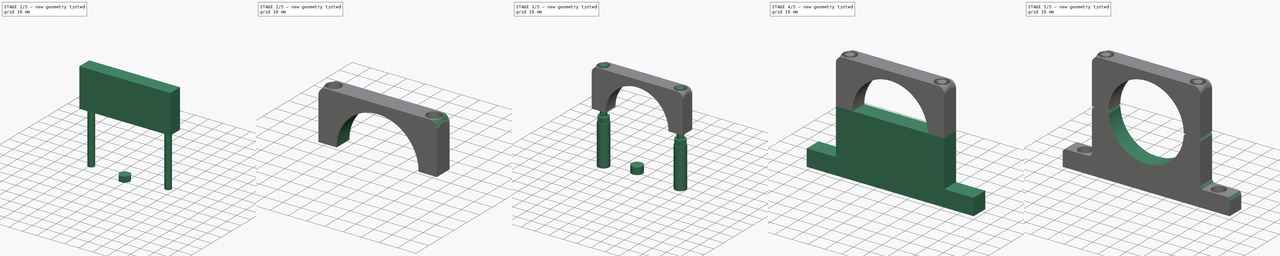
[diagram: build sequence overview — one tinted view per stage of 5, left to right]
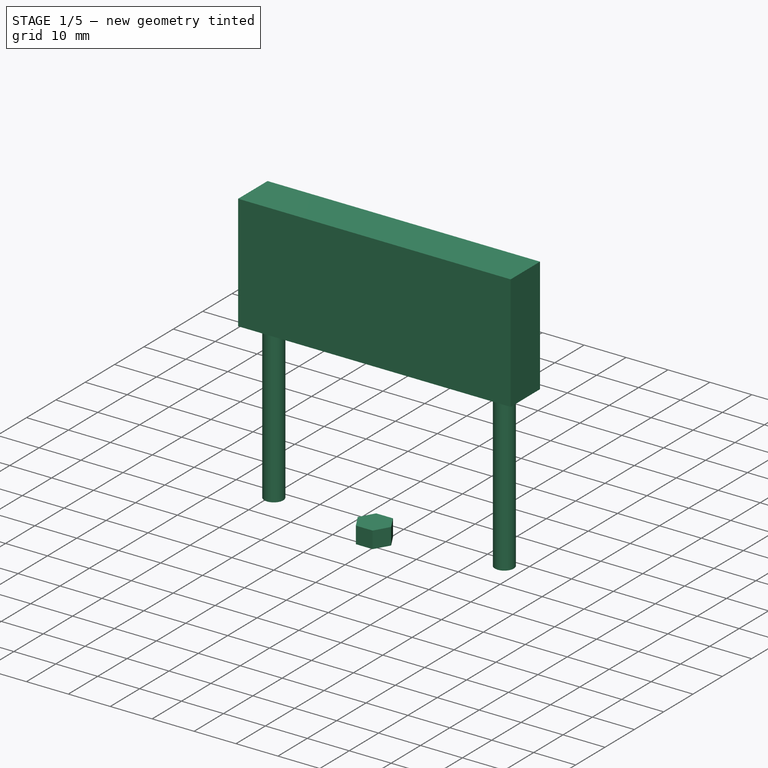
[diagram: stage 1 of 5 — iso view after this stage's code; geometry added in this stage tinted green]
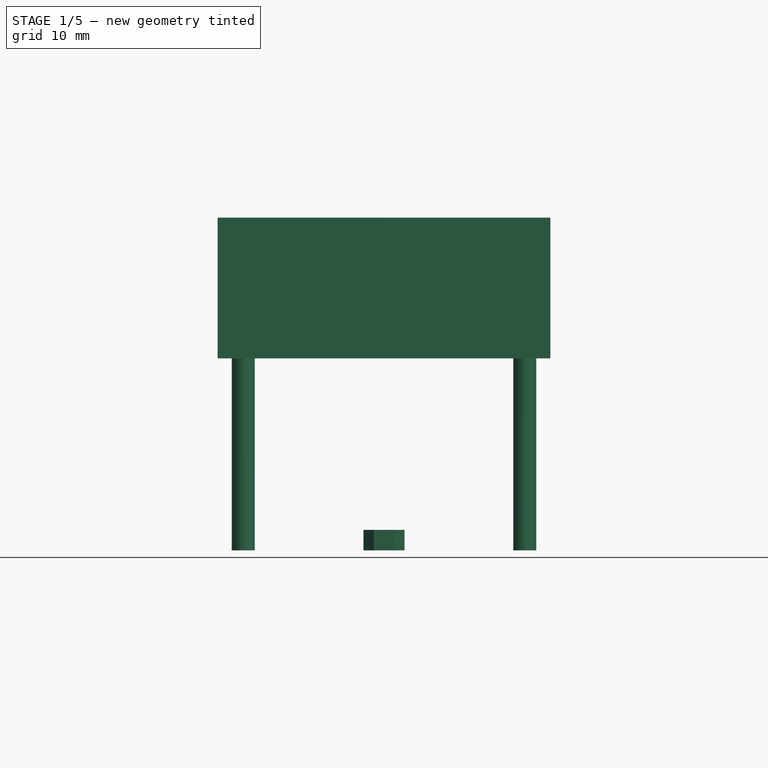
[diagram: stage 1 of 5 — front view after this stage's code; geometry added in this stage tinted green]
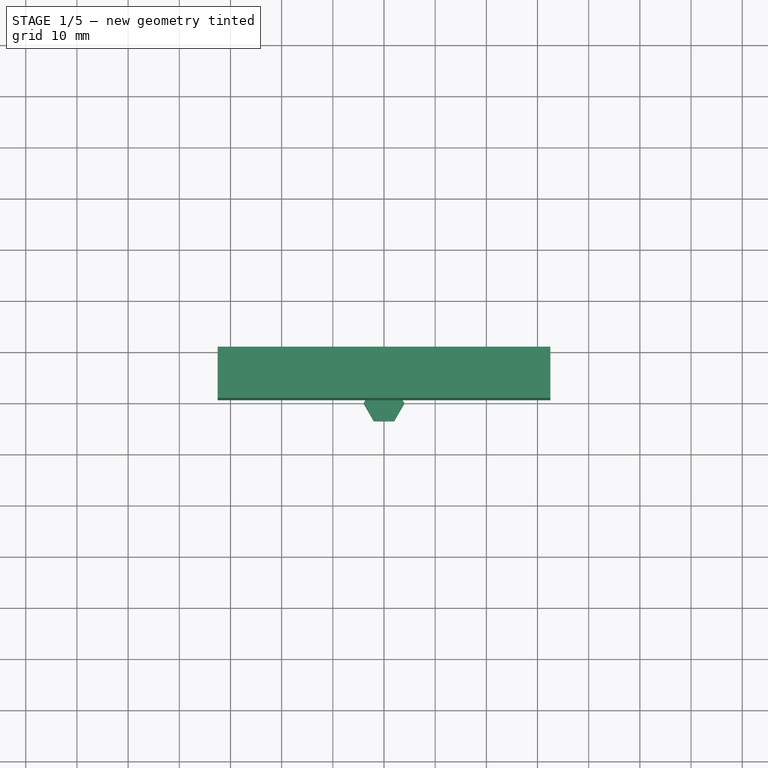
[diagram: stage 1 of 5 — top view after this stage's code; geometry added in this stage tinted green]
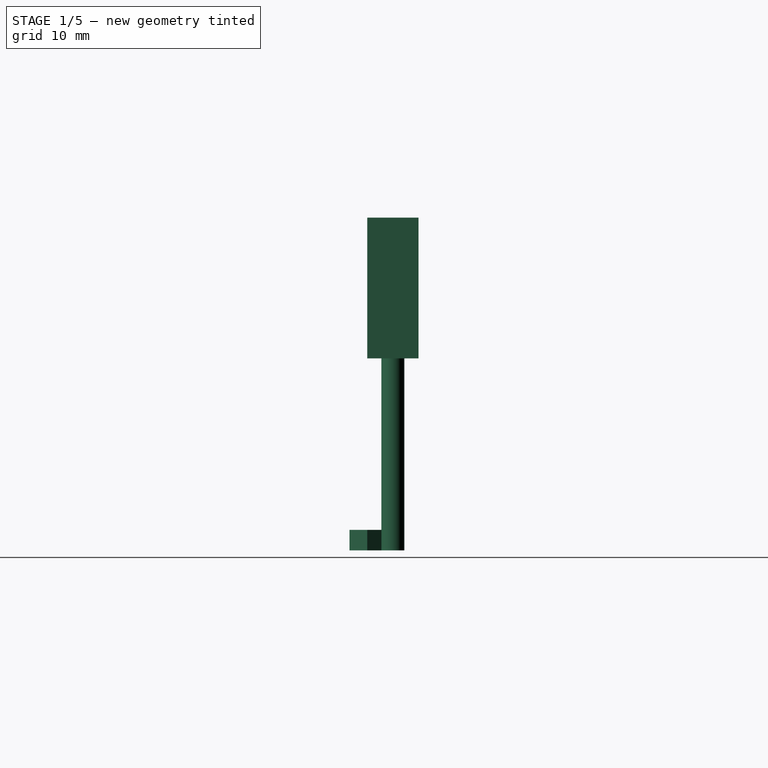
[diagram: stage 1 of 5 — right view after this stage's code; geometry added in this stage tinted green]
FCSTD DOCUMENT  (FreeCAD 1.0R1.0rc2)
Label: Parameterized Clamps M4
License: All rights reserved
LicenseURL: http://en.wikipedia.org/wiki/All_rights_reserved
objects: Part::Cylinder×18, Part::MultiFuse×10, Part::Cut×6, Sketcher::SketchObject×4, PartDesign::Pad×4, PartDesign::Body×4, Part::Box×3, Spreadsheet::Sheet×2, Part::Fillet×2, Part::Feature×2
note: 65 computed .brp shape members not serialized (recipe doc carries the construction recipe); baked Part::Feature solids carry a one-line shape summary decoded from their .brp

FEATURE [Part::Cylinder] Cylinder012
  Angle = 360
  AttacherType = Attacher::AttachEngine3D
  FirstAngle = 0
  Height = 65
  Placement = pos=(27.5,5,0) rot=(0,0,1;0rad)
  Radius = 2.25
  SecondAngle = 0
  expr: .Placement.Base.x = -(-<<ChamberMount>>.chamber_dia / 2 - 5)
  expr: .Placement.Base.y = <<ChamberMount>>.mount_thickness / 2
  expr: Height = <<ChamberMount>>.chamber_dia + <<ChamberMount>>.distance_below + <<ChamberMount>>.base_wallthick
FEATURE [Part::Cylinder] Cylinder013
  Angle = 360
  AttacherType = Attacher::AttachEngine3D
  FirstAngle = 0
  Height = 65
  Placement = pos=(-27.5,5,0) rot=(0,0,1;0rad)
  Radius = 2.25
  SecondAngle = 0
  expr: .Placement.Base.x = -<<ChamberMount>>.chamber_dia / 2 - 5
  expr: .Placement.Base.y = <<ChamberMount>>.mount_thickness / 2
  expr: Height = <<ChamberMount>>.chamber_dia + <<ChamberMount>>.distance_below + <<ChamberMount>>.base_wallthick
FEATURE [Part::MultiFuse] Fusion007
  Shapes = -> [Cylinder012,Cylinder013]
FEATURE [Sketcher::SketchObject] Sketch003
  ArcFitTolerance = 1e-06
  AttachmentSupport = -> [XY_Plane003]
  FullyConstrained = true
  MakeInternals = false
  MapMode = 5
  expr: Constraints[17] = 8 / 2
  sketch-geometry (7):
    g0: LineSegment StartX=4 StartY=0 StartZ=0 EndX=2 EndY=3.4641 EndZ=0
    g1: LineSegment StartX=2 StartY=3.4641 StartZ=0 EndX=-2 EndY=3.4641 EndZ=0
    g2: LineSegment StartX=-2 StartY=3.4641 StartZ=0 EndX=-4 EndY=0 EndZ=0
    g3: LineSegment StartX=-4 StartY=0 StartZ=0 EndX=-2 EndY=-3.4641 EndZ=0
    g4: LineSegment StartX=-2 StartY=-3.4641 StartZ=0 EndX=2 EndY=-3.4641 EndZ=0
    g5: LineSegment StartX=2 StartY=-3.4641 StartZ=0 EndX=4 EndY=0 EndZ=0
    g6: Circle [constr] CenterX=0 CenterY=0 CenterZ=0 NormalX=0 NormalY=0 NormalZ=1 AngleXU=0 Radius=4
  constraints (16):
    c: Coincident(g0,g1)
    c: Coincident(g1,g2)
    c: Coincident(g2,g3)
    c: Coincident(g3,g4)
    c: Coincident(g4,g5)
    c: Coincident(g5,g0)
    c: Equal(g0, g1-g5) x5
    c: PointOnObject(g0,g6)
    c: PointOnObject(g1,g6)
    c: PointOnObject(g2,g6)
    c: PointOnObject(g3,g6)
    c: PointOnObject(g4,g6)
    c: PointOnObject(g5,g6)
    c: Radius(g6) = 4
    c: Coincident(g6,g-1)
    c: PointOnObject(g5,g-1)
FEATURE [PartDesign::Pad] Pad003
  Direction = (0,0,1)
  Length = 4
  Length2 = 10
  Profile = -> Sketch003
  ReferenceAxis = -> Sketch003 [N_Axis]
  Suppressed = false
  Type = 0
FEATURE [PartDesign::Body] Body003  label="M4Press002"
  AllowCompound = false
  Group = -> [Sketch003,Pad003]
  Origin = -> Origin003
  Placement = pos=(-27.5,5,28.5) rot=(1,0,0;0rad)
  Tip = -> Pad003
  expr: .Placement.Base.x = -<<ChamberMount>>.chamber_dia / 2 - 5
  expr: .Placement.Base.y = <<ChamberMount>>.mount_thickness / 2
  expr: .Placement.Base.z = <<ChamberMount>>.distance_below + <<ChamberMount>>.chamber_dia / 2 - 4 - <<ChamberMount>>.base_wallthick
FEATURE [Sketcher::SketchObject] Sketch004
  ArcFitTolerance = 1e-06
  AttachmentSupport = -> [XY_Plane004]
  FullyConstrained = true
  MakeInternals = false
  MapMode = 5
  expr: Constraints[17] = 8 / 2
  sketch-geometry (7):
    g0: LineSegment StartX=4 StartY=0 StartZ=0 EndX=2 EndY=3.4641 EndZ=0
    g1: LineSegment StartX=2 StartY=3.4641 StartZ=0 EndX=-2 EndY=3.4641 EndZ=0
    g2: LineSegment StartX=-2 StartY=3.4641 StartZ=0 EndX=-4 EndY=0 EndZ=0
    g3: LineSegment StartX=-4 StartY=0 StartZ=0 EndX=-2 EndY=-3.4641 EndZ=0
    g4: LineSegment StartX=-2 StartY=-3.4641 StartZ=0 EndX=2 EndY=-3.4641 EndZ=0
    g5: LineSegment StartX=2 StartY=-3.4641 StartZ=0 EndX=4 EndY=0 EndZ=0
    g6: Circle [constr] CenterX=0 CenterY=0 CenterZ=0 NormalX=0 NormalY=0 NormalZ=1 AngleXU=0 Radius=4
  constraints (16):
    c: Coincident(g0,g1)
    c: Coincident(g1,g2)
    c: Coincident(g2,g3)
    c: Coincident(g3,g4)
    c: Coincident(g4,g5)
    c: Coincident(g5,g0)
    c: Equal(g0, g1-g5) x5
    c: PointOnObject(g0,g6)
    c: PointOnObject(g1,g6)
    c: PointOnObject(g2,g6)
    c: PointOnObject(g3,g6)
    c: PointOnObject(g4,g6)
    c: PointOnObject(g5,g6)
    c: Radius(g6) = 4
    c: Coincident(g6,g-1)
    c: PointOnObject(g5,g-1)
FEATURE [PartDesign::Pad] Pad004
  Direction = (0,0,1)
  Length = 4
  Length2 = 10
  Profile = -> Sketch004
  ReferenceAxis = -> Sketch004 [N_Axis]
  Suppressed = false
  Type = 0
FEATURE [Part::Box] Box002  label="Cube002"
  AttacherType = Attacher::AttachEngine3D
  Height = 27.5
  Length = 65
  Placement = pos=(-32.5,0,37.5) rot=(0,0,1;0rad)
  Width = 10
  expr: .Placement.Base.x = -(<<ChamberMount>>.chamber_dia + 20) / 2
  expr: .Placement.Base.z = <<ChamberMount>>.chamber_dia / 2 + <<ChamberMount>>.distance_below
  expr: Height = <<ChamberMount>>.chamber_dia / 2 + <<ChamberMount>>.base_wallthick
  expr: Length = <<ChamberMount>>.chamber_dia + 20
  expr: Width = <<ChamberMount>>.mount_thickness
FEATURE [Part::Cylinder] Cylinder016
  Angle = 360
  AttacherType = Attacher::AttachEngine3D
  FirstAngle = 0
  Height = 22.5
  Placement = pos=(27.5,5,0) rot=(0,0,1;0rad)
  Radius = 4
  SecondAngle = 0
  expr: .Placement.Base.x = -(-<<ChamberMount>>.chamber_dia / 2 - 5)
  expr: .Placement.Base.y = <<ChamberMount>>.mount_thickness / 2
  expr: Height = <<ChamberMount>>.chamber_dia / 2
FEATURE [Part::Cylinder] Cylinder017
  Angle = 360
  AttacherType = Attacher::AttachEngine3D
  FirstAngle = 0
  Height = 22.5
  Placement = pos=(-27.5,5,0) rot=(0,0,1;0rad)
  Radius = 4
  SecondAngle = 0
  expr: .Placement.Base.x = -<<ChamberMount>>.chamber_dia / 2 - 5
  expr: .Placement.Base.y = <<ChamberMount>>.mount_thickness / 2
  expr: Height = <<ChamberMount>>.chamber_dia / 2
FEATURE [Part::MultiFuse] Fusion009
  Placement = pos=(0,0,42.5) rot=(0,0,1;0rad)
  Shapes = -> [Cylinder016,Cylinder017]
  expr: .Placement.Base.z = <<ChamberMount>>.chamber_dia / 2 + <<ChamberMount>>.distance_below + <<ChamberMount>>.base_wallthick
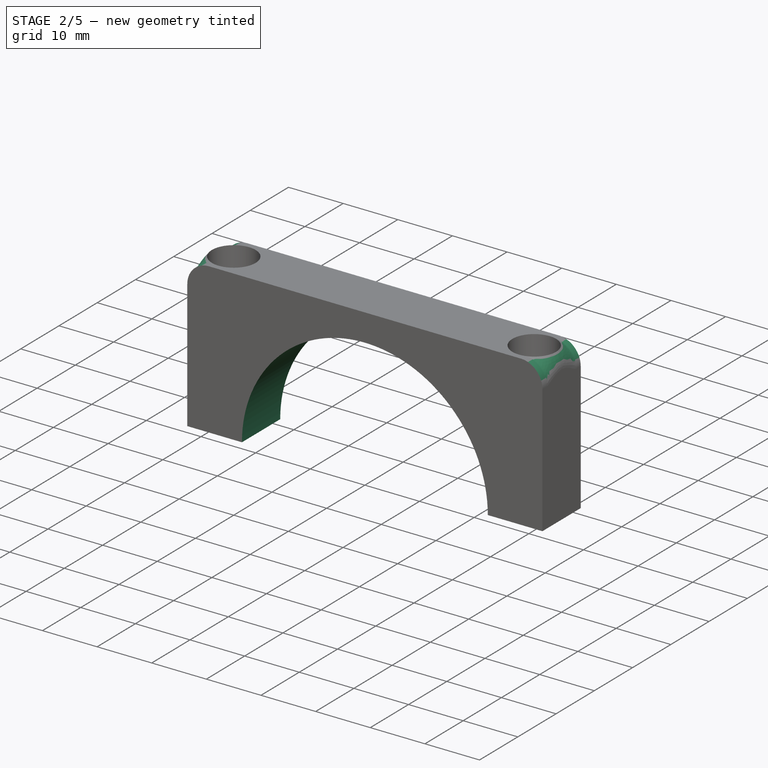
[diagram: stage 2 of 5 — iso view after this stage's code; geometry added in this stage tinted green]
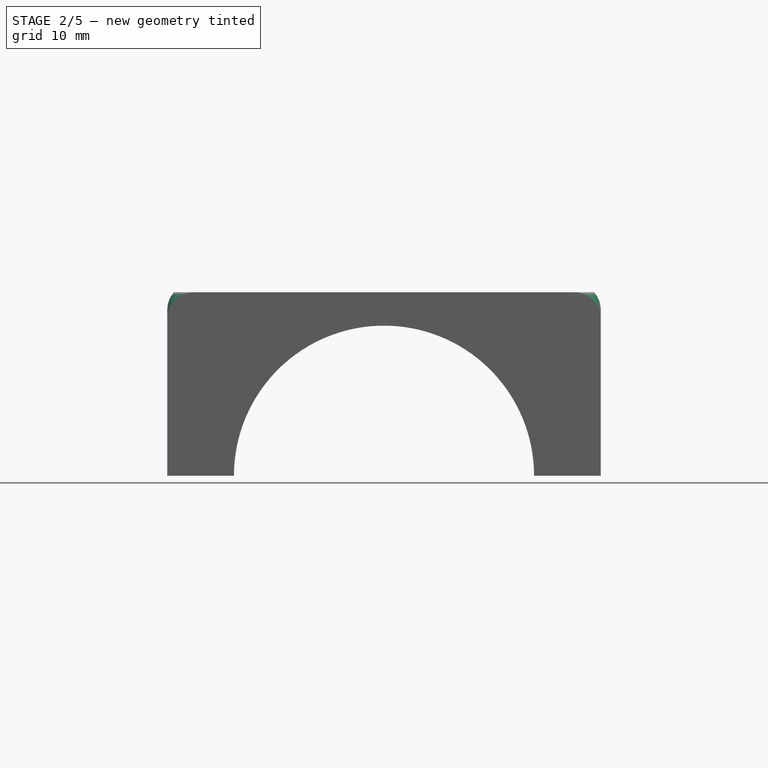
[diagram: stage 2 of 5 — front view after this stage's code; geometry added in this stage tinted green]
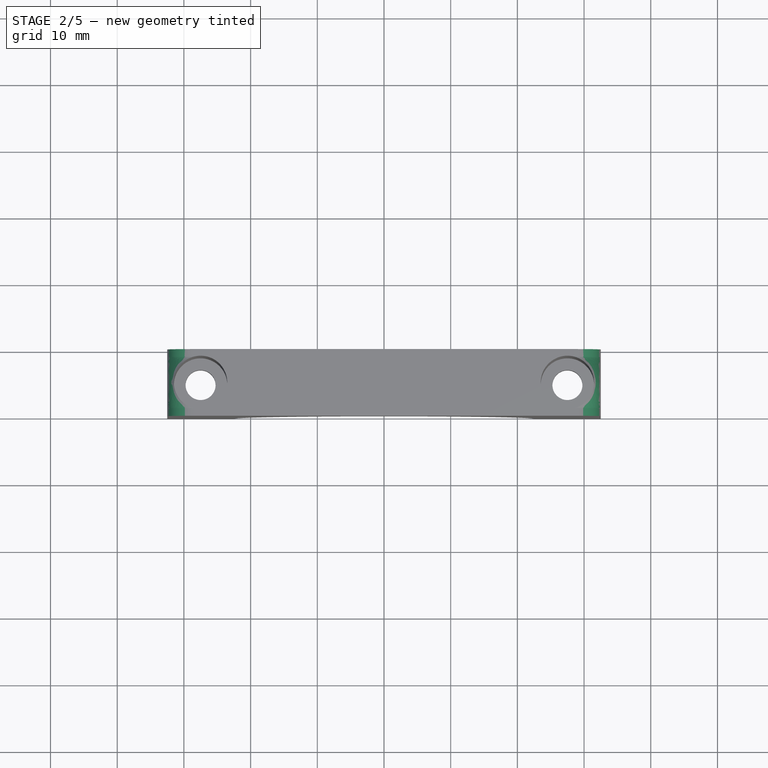
[diagram: stage 2 of 5 — top view after this stage's code; geometry added in this stage tinted green]
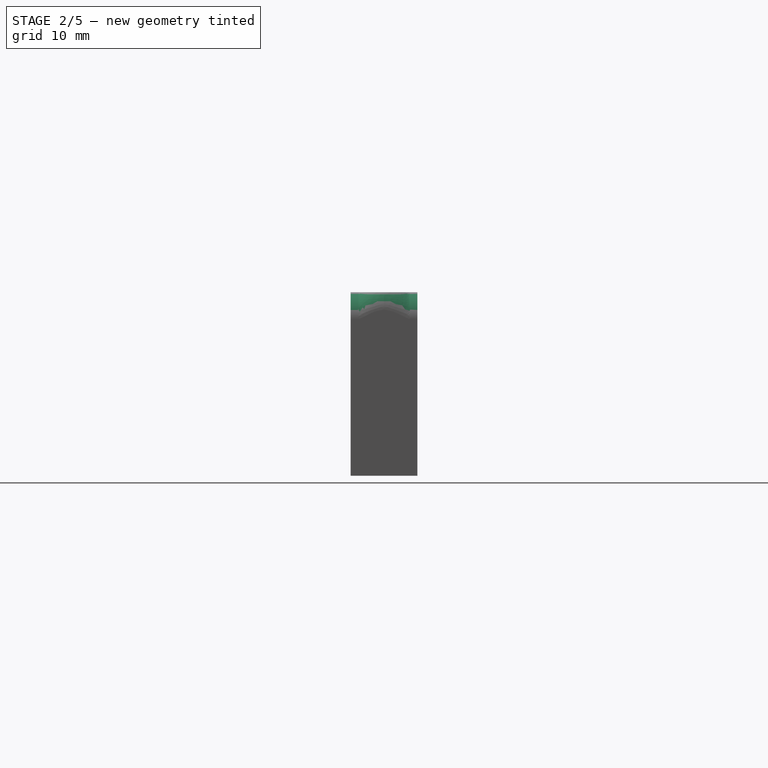
[diagram: stage 2 of 5 — right view after this stage's code; geometry added in this stage tinted green]
FEATURE [Part::Cylinder] Cylinder001
  Angle = 360
  AttacherType = Attacher::AttachEngine3D
  FirstAngle = 0
  Height = 10
  Placement = pos=(0,10,37.5) rot=(0.099504,0,0;1.5708rad)
  Radius = 22.5
  SecondAngle = 0
  expr: .Placement.Base.y = <<ChamberMount>>.mount_thickness
  expr: .Placement.Base.z = <<ChamberMount>>.distance_below + <<ChamberMount>>.chamber_dia / 2
  expr: Height = <<ChamberMount>>.mount_thickness
  expr: Radius = <<ChamberMount>>.chamber_dia / 2
FEATURE [Part::Cylinder] Cylinder014
  Angle = 360
  AttacherType = Attacher::AttachEngine3D
  FirstAngle = 0
  Height = 28.5
  Placement = pos=(27.5,5,0) rot=(0,0,1;0rad)
  Radius = 4
  SecondAngle = 0
  expr: .Placement.Base.x = -(-<<ChamberMount>>.chamber_dia / 2 - 5)
  expr: .Placement.Base.y = <<ChamberMount>>.mount_thickness / 2
  expr: Height = <<ChamberMount>>.distance_below + <<ChamberMount>>.chamber_dia / 2 - 4 - <<ChamberMount>>.base_wallthick
FEATURE [Part::Cylinder] Cylinder015
  Angle = 360
  AttacherType = Attacher::AttachEngine3D
  FirstAngle = 0
  Height = 28.5
  Placement = pos=(-27.5,5,0) rot=(0,0,1;0rad)
  Radius = 4
  SecondAngle = 0
  expr: .Placement.Base.x = -<<ChamberMount>>.chamber_dia / 2 - 5
  expr: .Placement.Base.y = <<ChamberMount>>.mount_thickness / 2
  expr: Height = <<ChamberMount>>.distance_below + <<ChamberMount>>.chamber_dia / 2 - 4 - <<ChamberMount>>.base_wallthick
FEATURE [PartDesign::Body] Body004  label="M4Press003"
  AllowCompound = false
  Group = -> [Sketch004,Pad004]
  Origin = -> Origin004
  Placement = pos=(27.5,5,28.5) rot=(1,0,0;0rad)
  Tip = -> Pad004
  expr: .Placement.Base.x = -(-<<ChamberMount>>.chamber_dia / 2 - 5)
  expr: .Placement.Base.y = <<ChamberMount>>.mount_thickness / 2
  expr: .Placement.Base.z = <<ChamberMount>>.distance_below + <<ChamberMount>>.chamber_dia / 2 - 4 - <<ChamberMount>>.base_wallthick
FEATURE [Part::MultiFuse] Fusion008  label="Connectors001"
  Shapes = -> [Cylinder014,Cylinder015,Fusion007,Body004,Body003]
FEATURE [Part::Cut] Cut003
  Base = -> Box002
  Tool = -> Fusion008
FEATURE [Part::Cut] Cut004
  Base = -> Cut003
  Tool = -> Fusion009
FEATURE [Part::Cut] Cut005
  Base = -> Cut004
  Tool = -> Cylinder001
FEATURE [Part::Fillet] Fillet001  label="Upper Part"
  Base = -> Cut005
  EdgeLinks = -> Cut005 [Edge2,Edge11]
  Edges = 2 edges r=4: [Edge2,Edge11]
FEATURE [Part::Feature] Fillet_solid  label="Lower Part (Solid)"
  shape: bbox 100 x 10 x 37.5 mm, 64 faces (baked)
FEATURE [Part::Feature] Fillet001_solid  label="Upper Part (Solid)"
  shape: bbox 65 x 10 x 27.5 mm, 21 faces (baked)
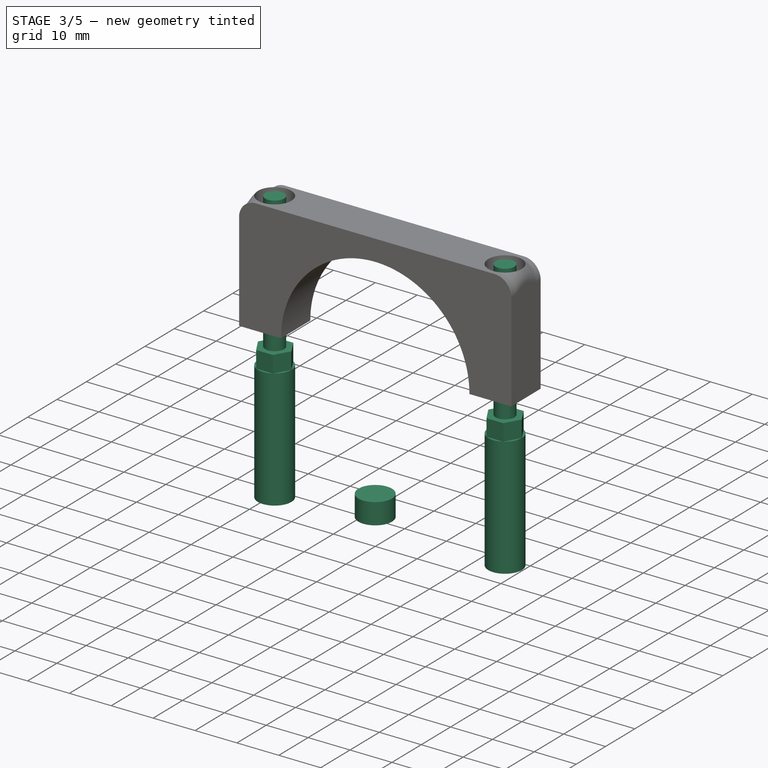
[diagram: stage 3 of 5 — iso view after this stage's code; geometry added in this stage tinted green]
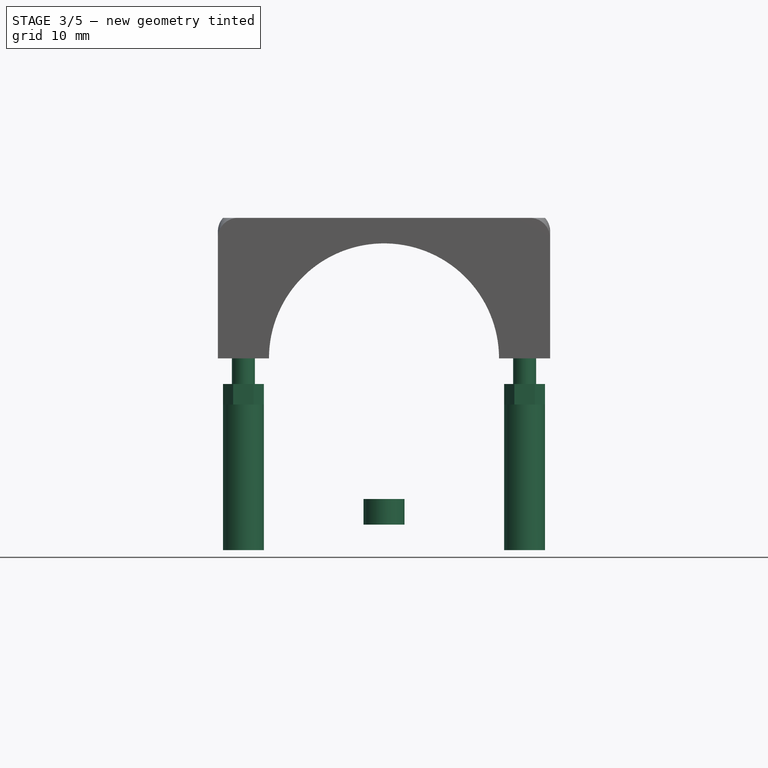
[diagram: stage 3 of 5 — front view after this stage's code; geometry added in this stage tinted green]
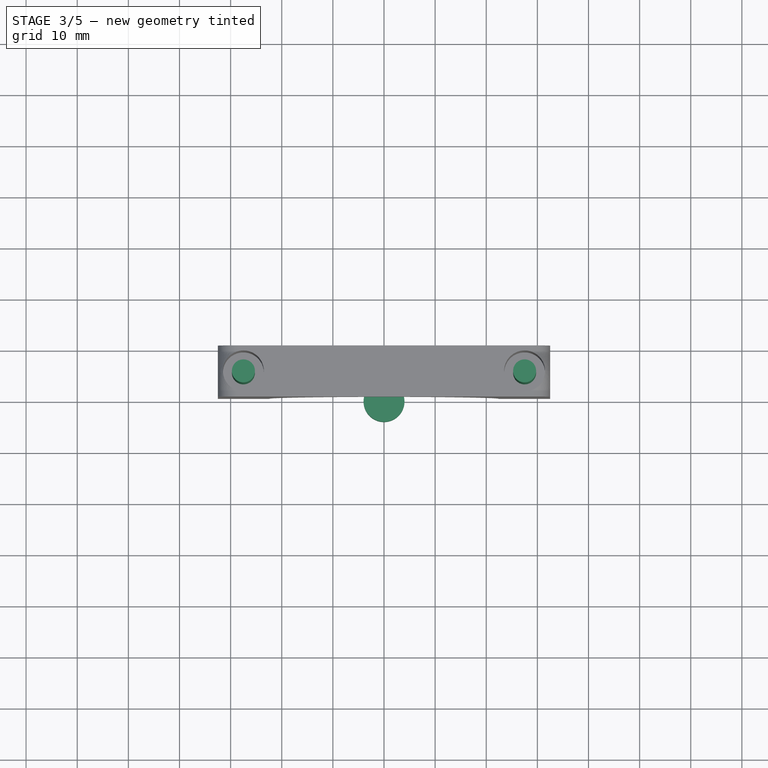
[diagram: stage 3 of 5 — top view after this stage's code; geometry added in this stage tinted green]
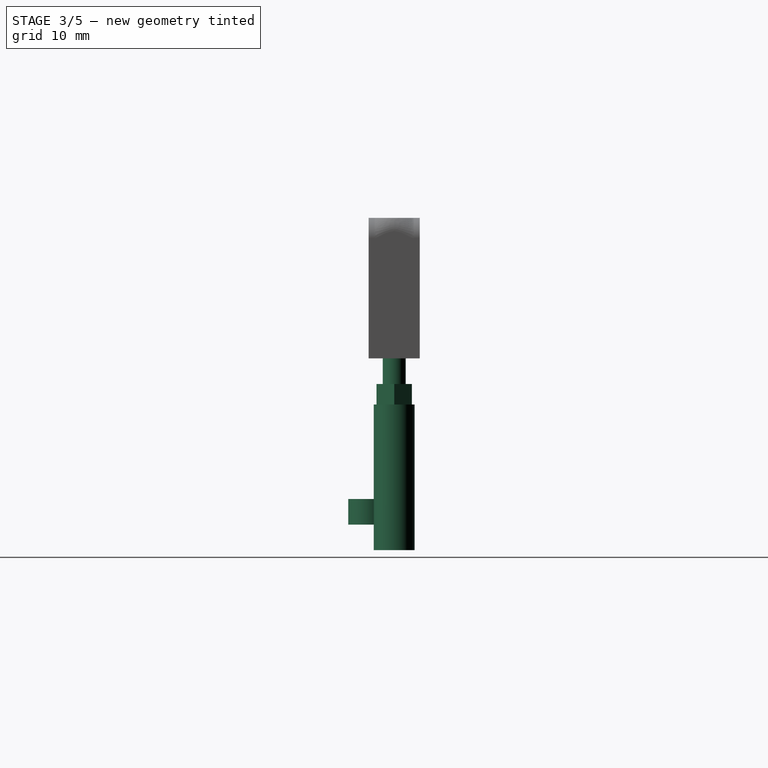
[diagram: stage 3 of 5 — right view after this stage's code; geometry added in this stage tinted green]
FEATURE [Part::Cylinder] Cylinder005
  Angle = 360
  AttacherType = Attacher::AttachEngine3D
  FirstAngle = 0
  Height = 5
  Placement = pos=(0,0,5) rot=(0,0,1;0rad)
  Radius = 4
  SecondAngle = 0
  expr: .Placement.Base.z = <<ChamberMount>>.base_wallthick
  expr: Height = <<ChamberMount>>.base_height - <<ChamberMount>>.base_wallthick
FEATURE [Sketcher::SketchObject] Sketch001
  ArcFitTolerance = 1e-06
  AttachmentSupport = -> [XY_Plane001]
  FullyConstrained = true
  MakeInternals = false
  MapMode = 5
  expr: Constraints[17] = 8 / 2
  sketch-geometry (7):
    g0: LineSegment StartX=4 StartY=0 StartZ=0 EndX=2 EndY=3.4641 EndZ=0
    g1: LineSegment StartX=2 StartY=3.4641 StartZ=0 EndX=-2 EndY=3.4641 EndZ=0
    g2: LineSegment StartX=-2 StartY=3.4641 StartZ=0 EndX=-4 EndY=0 EndZ=0
    g3: LineSegment StartX=-4 StartY=0 StartZ=0 EndX=-2 EndY=-3.4641 EndZ=0
    g4: LineSegment StartX=-2 StartY=-3.4641 StartZ=0 EndX=2 EndY=-3.4641 EndZ=0
    g5: LineSegment StartX=2 StartY=-3.4641 StartZ=0 EndX=4 EndY=0 EndZ=0
    g6: Circle [constr] CenterX=0 CenterY=0 CenterZ=0 NormalX=0 NormalY=0 NormalZ=1 AngleXU=0 Radius=4
  constraints (16):
    c: Coincident(g0,g1)
    c: Coincident(g1,g2)
    c: Coincident(g2,g3)
    c: Coincident(g3,g4)
    c: Coincident(g4,g5)
    c: Coincident(g5,g0)
    c: Equal(g0, g1-g5) x5
    c: PointOnObject(g0,g6)
    c: PointOnObject(g1,g6)
    c: PointOnObject(g2,g6)
    c: PointOnObject(g3,g6)
    c: PointOnObject(g4,g6)
    c: PointOnObject(g5,g6)
    c: Radius(g6) = 4
    c: Coincident(g6,g-1)
    c: PointOnObject(g5,g-1)
FEATURE [PartDesign::Pad] Pad001
  Direction = (0,0,1)
  Length = 4
  Length2 = 10
  Profile = -> Sketch001
  ReferenceAxis = -> Sketch001 [N_Axis]
  Suppressed = false
  Type = 0
FEATURE [PartDesign::Body] Body001  label="M4Press"
  AllowCompound = false
  Group = -> [Sketch001,Pad001]
  Origin = -> Origin001
  Placement = pos=(-27.5,5,28.5) rot=(1,0,0;0rad)
  Tip = -> Pad001
  expr: .Placement.Base.x = -<<ChamberMount>>.chamber_dia / 2 - 5
  expr: .Placement.Base.y = <<ChamberMount>>.mount_thickness / 2
  expr: .Placement.Base.z = <<ChamberMount>>.distance_below + <<ChamberMount>>.chamber_dia / 2 - 4 - <<ChamberMount>>.base_wallthick
FEATURE [Spreadsheet::Sheet] Spreadsheet001  label="SuspensionBracket1"
  cells = A2='Vertical Spacing; B2(vertical_spacing)=70; G2='Horizontal distance Wheel to Flange; H2(horizontalspacing_wf)==tan(idle_angle) * vertical_spacing; A3='Idle angle; B3(idle_angle)=30; G3='Effective thickness; H3(thick_eff)==max(7.5 + min_wall; thickness); A4='Minimum wall width; B4(min_wall)=2; G4='Occupied horizontal space; H4(occupied_horizontal)==vertical_spacing / cos(idle_angle); A5='Thickness; B5(thickness)=5; G5='Length of straight section 1; H5(straight1)==vertical_spacing / cos(idle_angle)
FEATURE [Sketcher::SketchObject] Sketch002
  ArcFitTolerance = 1e-06
  AttachmentSupport = -> [XY_Plane002]
  FullyConstrained = true
  MakeInternals = false
  MapMode = 5
  expr: Constraints[17] = 8 / 2
  sketch-geometry (7):
    g0: LineSegment StartX=4 StartY=0 StartZ=0 EndX=2 EndY=3.4641 EndZ=0
    g1: LineSegment StartX=2 StartY=3.4641 StartZ=0 EndX=-2 EndY=3.4641 EndZ=0
    g2: LineSegment StartX=-2 StartY=3.4641 StartZ=0 EndX=-4 EndY=0 EndZ=0
    g3: LineSegment StartX=-4 StartY=0 StartZ=0 EndX=-2 EndY=-3.4641 EndZ=0
    g4: LineSegment StartX=-2 StartY=-3.4641 StartZ=0 EndX=2 EndY=-3.4641 EndZ=0
    g5: LineSegment StartX=2 StartY=-3.4641 StartZ=0 EndX=4 EndY=0 EndZ=0
    g6: Circle [constr] CenterX=0 CenterY=0 CenterZ=0 NormalX=0 NormalY=0 NormalZ=1 AngleXU=0 Radius=4
  constraints (16):
    c: Coincident(g0,g1)
    c: Coincident(g1,g2)
    c: Coincident(g2,g3)
    c: Coincident(g3,g4)
    c: Coincident(g4,g5)
    c: Coincident(g5,g0)
    c: Equal(g0, g1-g5) x5
    c: PointOnObject(g0,g6)
    c: PointOnObject(g1,g6)
    c: PointOnObject(g2,g6)
    c: PointOnObject(g3,g6)
    c: PointOnObject(g4,g6)
    c: PointOnObject(g5,g6)
    c: Radius(g6) = 4
    c: Coincident(g6,g-1)
    c: PointOnObject(g5,g-1)
FEATURE [PartDesign::Pad] Pad002
  Direction = (0,0,1)
  Length = 4
  Length2 = 10
  Profile = -> Sketch002
  ReferenceAxis = -> Sketch002 [N_Axis]
  Suppressed = false
  Type = 0
FEATURE [PartDesign::Body] Body002  label="M4Press001"
  AllowCompound = false
  Group = -> [Sketch002,Pad002]
  Origin = -> Origin002
  Placement = pos=(27.5,5,28.5) rot=(1,0,0;0rad)
  Tip = -> Pad002
  expr: .Placement.Base.x = -(-<<ChamberMount>>.chamber_dia / 2 - 5)
  expr: .Placement.Base.y = <<ChamberMount>>.mount_thickness / 2
  expr: .Placement.Base.z = <<ChamberMount>>.distance_below + <<ChamberMount>>.chamber_dia / 2 - 4 - <<ChamberMount>>.base_wallthick
FEATURE [Part::Cylinder] Cylinder006
  Angle = 360
  AttacherType = Attacher::AttachEngine3D
  FirstAngle = 0
  Height = 65
  Placement = pos=(27.5,5,0) rot=(0,0,1;0rad)
  Radius = 2.25
  SecondAngle = 0
  expr: .Placement.Base.x = -(-<<ChamberMount>>.chamber_dia / 2 - 5)
  expr: .Placement.Base.y = <<ChamberMount>>.mount_thickness / 2
  expr: Height = <<ChamberMount>>.chamber_dia + <<ChamberMount>>.distance_below + <<ChamberMount>>.base_wallthick
FEATURE [Part::Cylinder] Cylinder007
  Angle = 360
  AttacherType = Attacher::AttachEngine3D
  FirstAngle = 0
  Height = 65
  Placement = pos=(-27.5,5,0) rot=(0,0,1;0rad)
  Radius = 2.25
  SecondAngle = 0
  expr: .Placement.Base.x = -<<ChamberMount>>.chamber_dia / 2 - 5
  expr: .Placement.Base.y = <<ChamberMount>>.mount_thickness / 2
  expr: Height = <<ChamberMount>>.chamber_dia + <<ChamberMount>>.distance_below + <<ChamberMount>>.base_wallthick
FEATURE [Part::MultiFuse] Fusion004
  Shapes = -> [Cylinder006,Cylinder007]
FEATURE [Part::Cylinder] Cylinder010
  Angle = 360
  AttacherType = Attacher::AttachEngine3D
  FirstAngle = 0
  Height = 28.5
  Placement = pos=(27.5,5,0) rot=(0,0,1;0rad)
  Radius = 4
  SecondAngle = 0
  expr: .Placement.Base.x = -(-<<ChamberMount>>.chamber_dia / 2 - 5)
  expr: .Placement.Base.y = <<ChamberMount>>.mount_thickness / 2
  expr: Height = <<ChamberMount>>.distance_below + <<ChamberMount>>.chamber_dia / 2 - 4 - <<ChamberMount>>.base_wallthick
FEATURE [Part::Cylinder] Cylinder011
  Angle = 360
  AttacherType = Attacher::AttachEngine3D
  FirstAngle = 0
  Height = 28.5
  Placement = pos=(-27.5,5,0) rot=(0,0,1;0rad)
  Radius = 4
  SecondAngle = 0
  expr: .Placement.Base.x = -<<ChamberMount>>.chamber_dia / 2 - 5
  expr: .Placement.Base.y = <<ChamberMount>>.mount_thickness / 2
  expr: Height = <<ChamberMount>>.distance_below + <<ChamberMount>>.chamber_dia / 2 - 4 - <<ChamberMount>>.base_wallthick
FEATURE [Part::MultiFuse] Fusion006  label="Connectors"
  Shapes = -> [Cylinder010,Cylinder011,Fusion004,Body002,Body001]
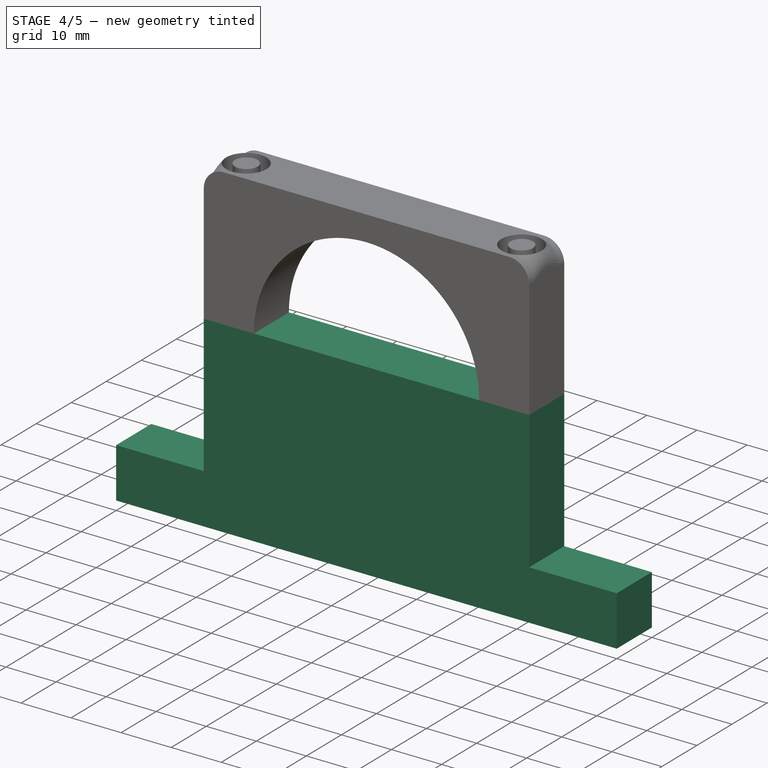
[diagram: stage 4 of 5 — iso view after this stage's code; geometry added in this stage tinted green]
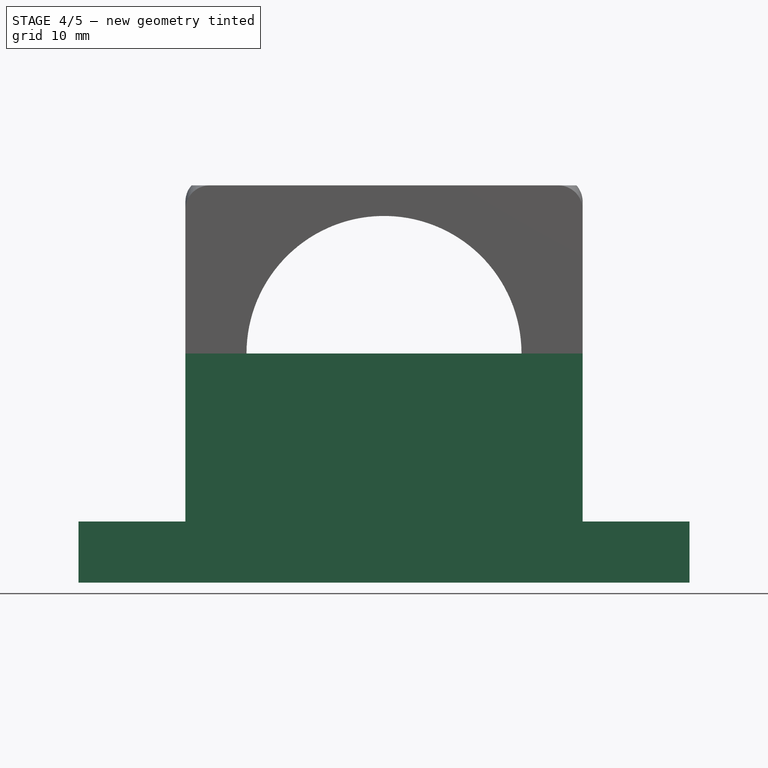
[diagram: stage 4 of 5 — front view after this stage's code; geometry added in this stage tinted green]
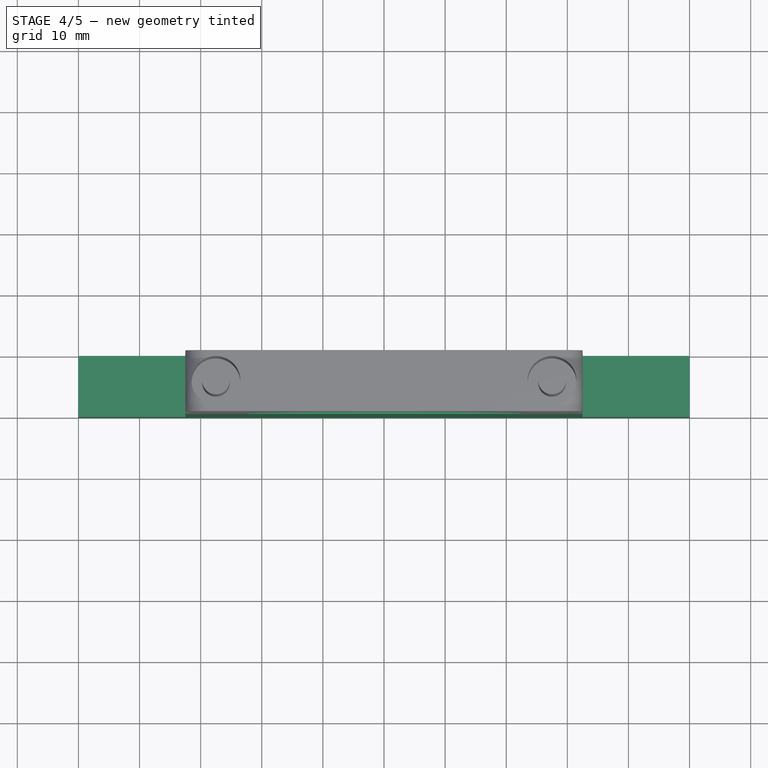
[diagram: stage 4 of 5 — top view after this stage's code; geometry added in this stage tinted green]
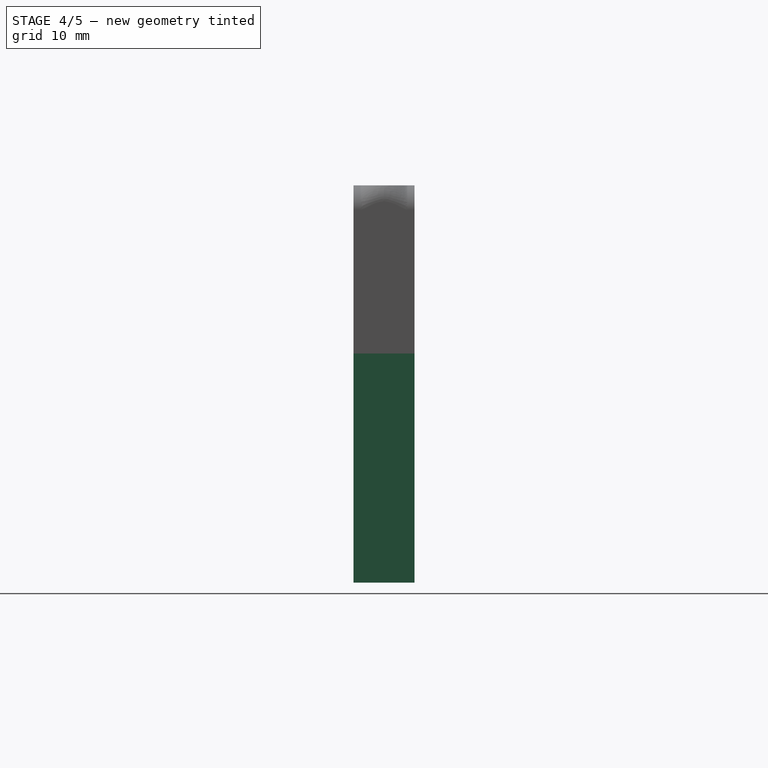
[diagram: stage 4 of 5 — right view after this stage's code; geometry added in this stage tinted green]
FEATURE [Spreadsheet::Sheet] Spreadsheet  label="ChamberMount"
  cells = A1='Mount properties; A2='Chamber diameter; B2(chamber_dia)=45; A3='Distance below chamber; B3(distance_below)=15; A4='Thickness of mount; B4(mount_thickness)=10; A6='Mount width; B6(base_width)=100; A7='Mounthole spacing; B7(base_hole_spacing)=80; A8='Base height; B8(base_height)=10; A9='Wall thickness; B9(base_wallthick)=5
FEATURE [Part::Box] Box  label="Cube"
  AttacherType = Attacher::AttachEngine3D
  Height = 10
  Length = 100
  Placement = pos=(-50,0,0) rot=(0,0,1;0rad)
  Width = 10
  expr: .Placement.Base.x = -<<ChamberMount>>.base_width / 2
  expr: Height = <<ChamberMount>>.base_height
  expr: Length = <<ChamberMount>>.base_width
  expr: Width = <<ChamberMount>>.mount_thickness
FEATURE [Part::Box] Box001  label="Cube001"
  AttacherType = Attacher::AttachEngine3D
  Height = 37.5
  Length = 65
  Placement = pos=(-32.5,0,0) rot=(0,0,1;0rad)
  Width = 10
  expr: .Placement.Base.x = -<<ChamberMount>>.chamber_dia / 2 - 10
  expr: Height = <<ChamberMount>>.distance_below + <<ChamberMount>>.chamber_dia / 2
  expr: Length = <<ChamberMount>>.chamber_dia + 2 * 10
  expr: Width = <<ChamberMount>>.mount_thickness
FEATURE [Part::Cylinder] Cylinder002
  Angle = 360
  AttacherType = Attacher::AttachEngine3D
  FirstAngle = 0
  Height = 10
  Radius = 2.25
  SecondAngle = 0
  expr: Height = <<ChamberMount>>.base_height
FEATURE [Part::Cylinder] Cylinder003
  Angle = 360
  AttacherType = Attacher::AttachEngine3D
  FirstAngle = 0
  Height = 5
  Placement = pos=(0,0,5) rot=(0,0,1;0rad)
  Radius = 4
  SecondAngle = 0
  expr: .Placement.Base.z = <<ChamberMount>>.base_wallthick
  expr: Height = <<ChamberMount>>.base_height - <<ChamberMount>>.base_wallthick
FEATURE [Part::MultiFuse] Fusion001
  Placement = pos=(40,5,0) rot=(0,0,1;0rad)
  Shapes = -> [Cylinder003,Cylinder002]
  expr: .Placement.Base.x = <<ChamberMount>>.base_hole_spacing / 2
  expr: .Placement.Base.y = <<ChamberMount>>.mount_thickness / 2
FEATURE [Part::Cylinder] Cylinder004
  Angle = 360
  AttacherType = Attacher::AttachEngine3D
  FirstAngle = 0
  Height = 10
  Radius = 2.25
  SecondAngle = 0
  expr: Height = <<ChamberMount>>.base_height
FEATURE [Part::MultiFuse] Fusion002
  Placement = pos=(-40,5,0) rot=(0,0,1;0rad)
  Shapes = -> [Cylinder005,Cylinder004]
  expr: .Placement.Base.x = -<<ChamberMount>>.base_hole_spacing / 2
  expr: .Placement.Base.y = <<ChamberMount>>.mount_thickness / 2
FEATURE [Part::MultiFuse] Fusion003
  Shapes = -> [Fusion001,Fusion002]
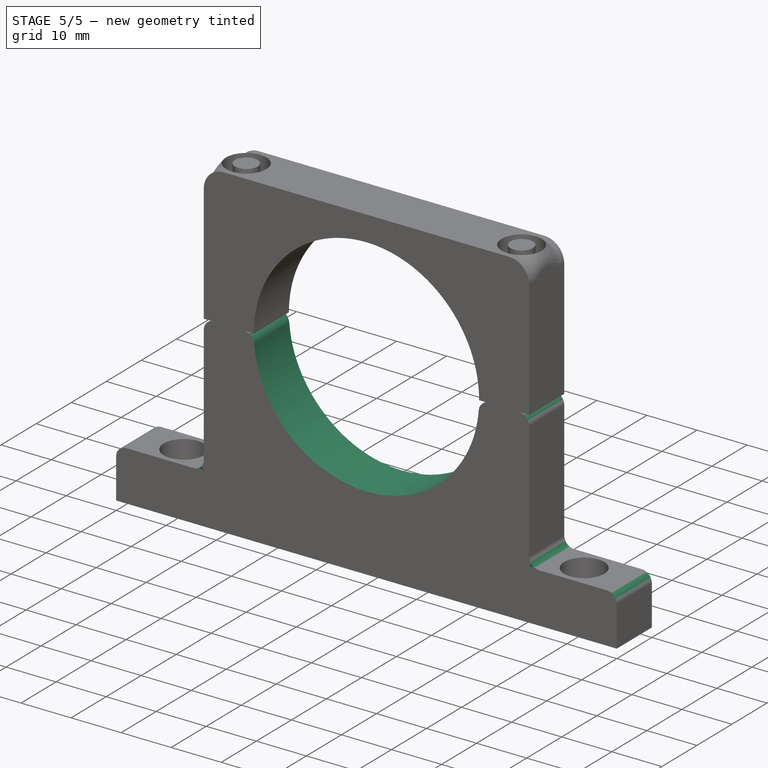
[diagram: stage 5 of 5 — iso view after this stage's code; geometry added in this stage tinted green]
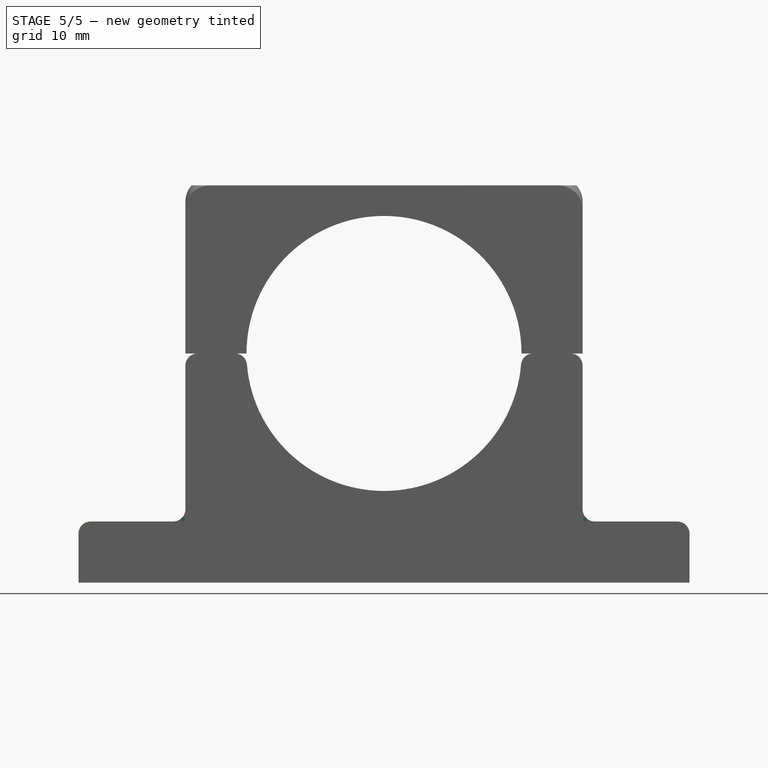
[diagram: stage 5 of 5 — front view after this stage's code; geometry added in this stage tinted green]
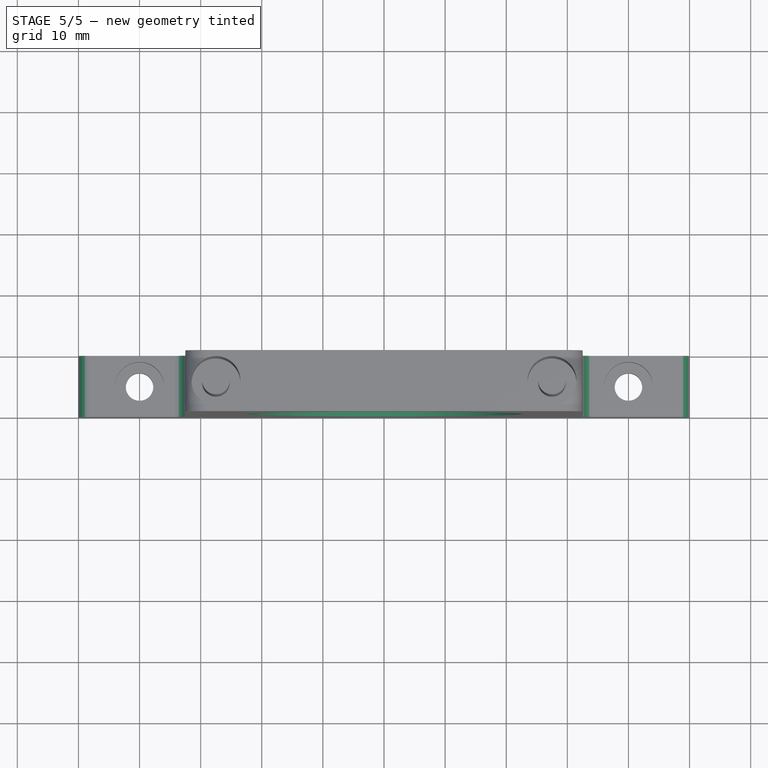
[diagram: stage 5 of 5 — top view after this stage's code; geometry added in this stage tinted green]
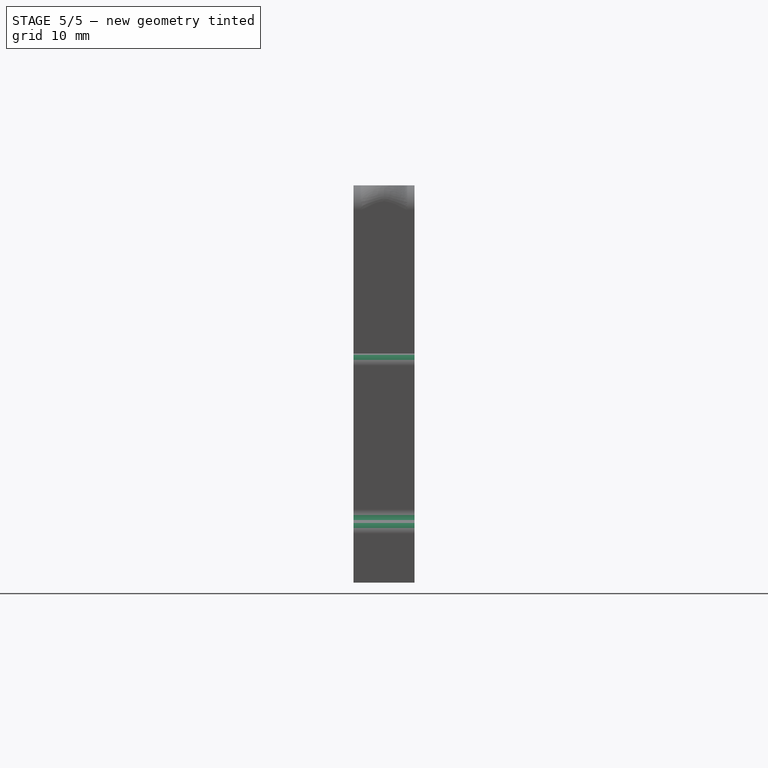
[diagram: stage 5 of 5 — right view after this stage's code; geometry added in this stage tinted green]
FEATURE [Part::Cylinder] Cylinder
  Angle = 360
  AttacherType = Attacher::AttachEngine3D
  FirstAngle = 0
  Height = 10
  Placement = pos=(0,10,37.5) rot=(0.099504,0,0;1.5708rad)
  Radius = 22.5
  SecondAngle = 0
  expr: .Placement.Base.y = <<ChamberMount>>.mount_thickness
  expr: .Placement.Base.z = <<ChamberMount>>.distance_below + <<ChamberMount>>.chamber_dia / 2
  expr: Height = <<ChamberMount>>.mount_thickness
  expr: Radius = <<ChamberMount>>.chamber_dia / 2
FEATURE [Part::MultiFuse] Fusion
  Shapes = -> [Box001,Box]
FEATURE [Part::Cut] Cut
  Base = -> Fusion
  Tool = -> Cylinder
FEATURE [Part::Cut] Cut001
  Base = -> Cut
  Tool = -> Fusion003
FEATURE [Part::Cylinder] Cylinder008
  Angle = 360
  AttacherType = Attacher::AttachEngine3D
  FirstAngle = 0
  Height = 65
  Placement = pos=(27.5,5,0) rot=(0,0,1;0rad)
  Radius = 2.25
  SecondAngle = 0
  expr: .Placement.Base.x = -(-<<ChamberMount>>.chamber_dia / 2 - 5)
  expr: .Placement.Base.y = <<ChamberMount>>.mount_thickness / 2
  expr: Height = <<ChamberMount>>.chamber_dia + <<ChamberMount>>.distance_below + <<ChamberMount>>.base_wallthick
FEATURE [Part::Cylinder] Cylinder009
  Angle = 360
  AttacherType = Attacher::AttachEngine3D
  FirstAngle = 0
  Height = 65
  Placement = pos=(-27.5,5,0) rot=(0,0,1;0rad)
  Radius = 2.25
  SecondAngle = 0
  expr: .Placement.Base.x = -<<ChamberMount>>.chamber_dia / 2 - 5
  expr: .Placement.Base.y = <<ChamberMount>>.mount_thickness / 2
  expr: Height = <<ChamberMount>>.chamber_dia + <<ChamberMount>>.distance_below + <<ChamberMount>>.base_wallthick
FEATURE [Part::MultiFuse] Fusion005
  Shapes = -> [Cylinder008,Cylinder009]
FEATURE [Part::Cut] Cut002
  Base = -> Cut001
  Tool = -> Fusion006
FEATURE [Part::Fillet] Fillet  label="Lower Part"
  Base = -> Cut002
  EdgeLinks = -> Cut002 [Edge24,Edge27,Edge29,Edge32,Edge34,Edge37,Edge40,Edge45]
  Edges = 8 edges r=2: [Edge24,Edge27,Edge29,Edge32,Edge34,Edge37,Edge40,Edge45]
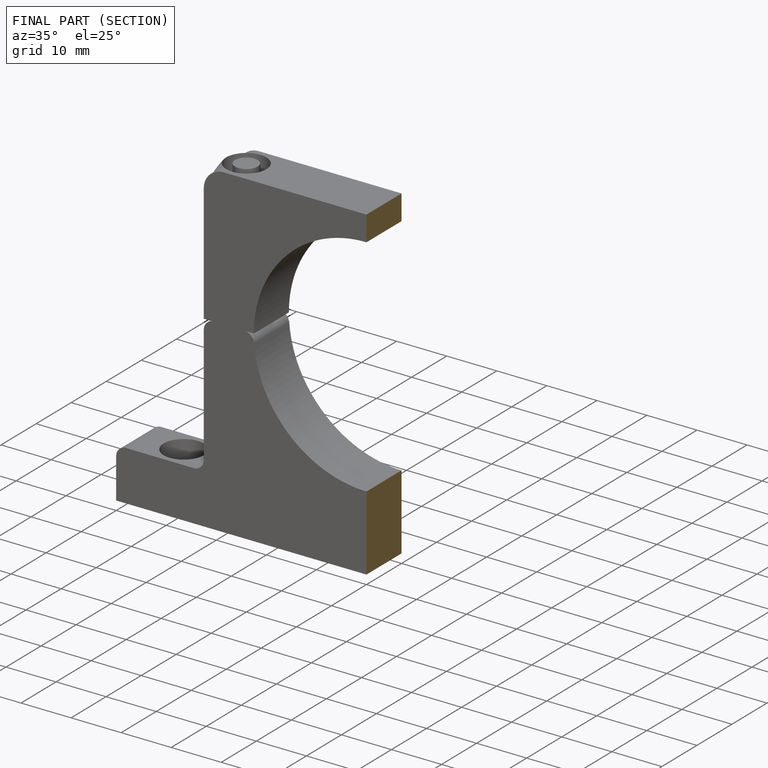
[diagram: finished part — half-section view (interior)]
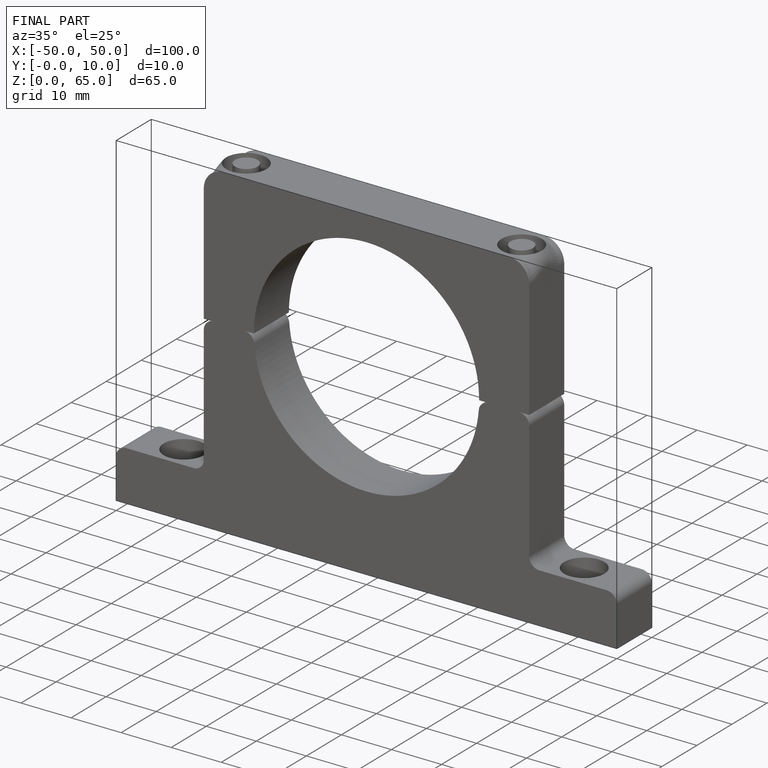
[diagram: finished part — iso view with bounding-box wireframe]
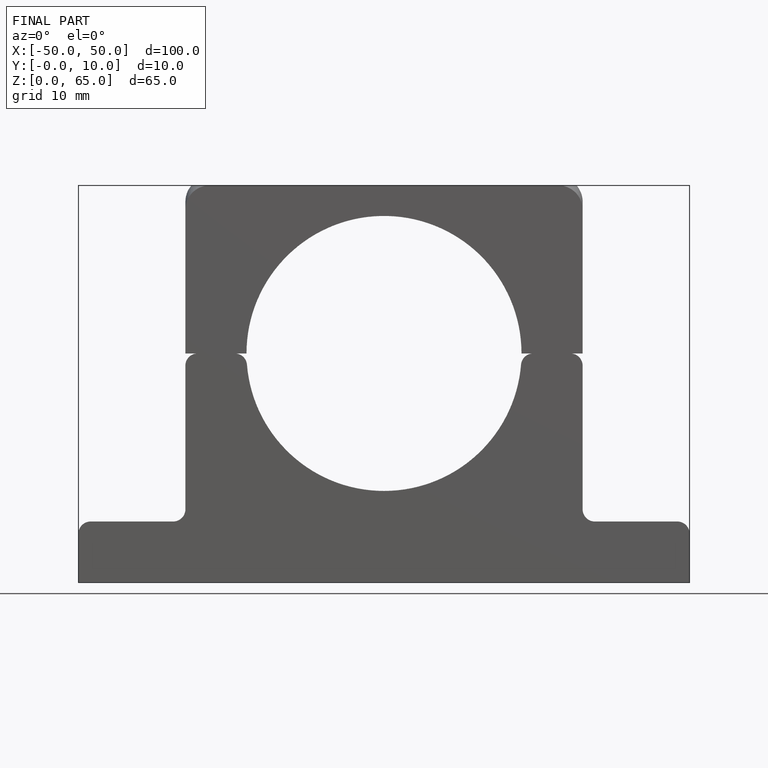
[diagram: finished part — front view with bounding-box wireframe]
